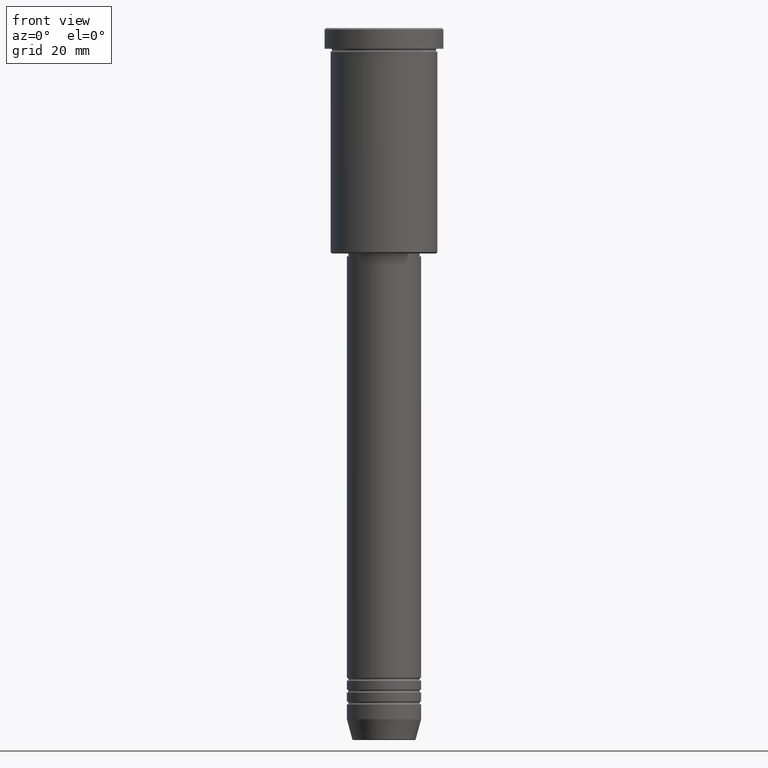
[diagram: clean part render]
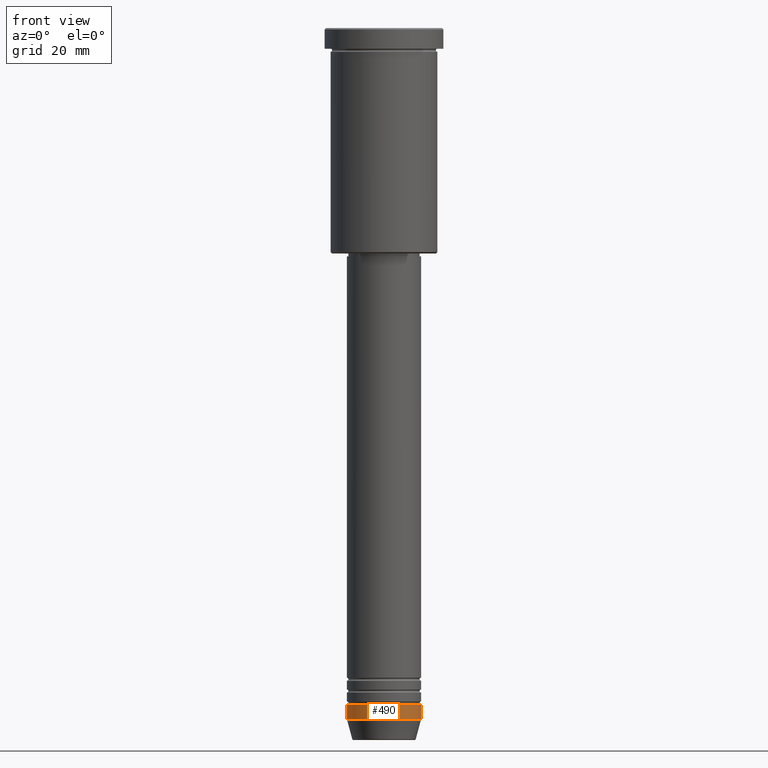
[diagram: same view with one face highlighted and labeled with its STEP entity id]
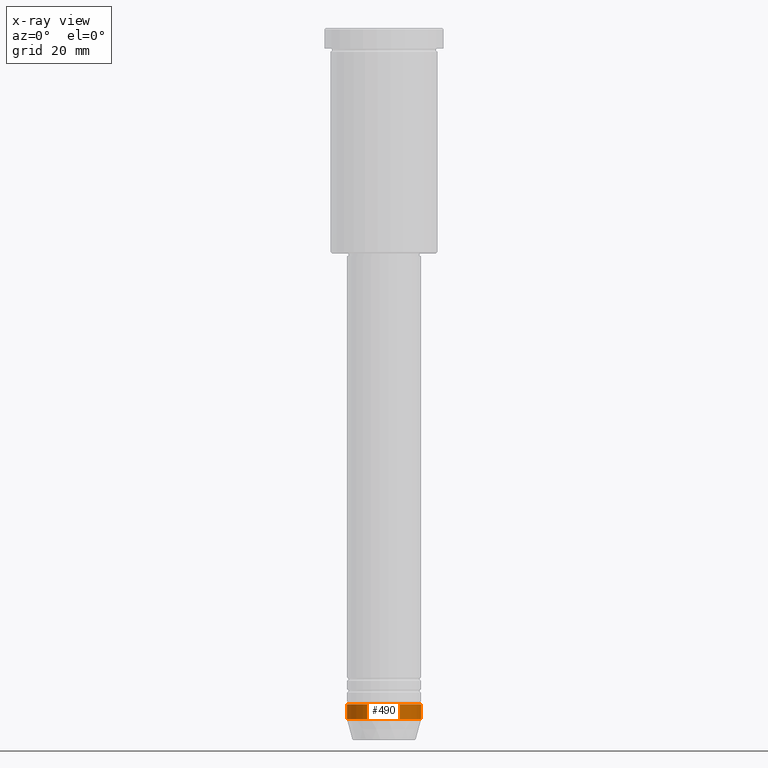
[diagram: x-ray of the same camera — body ghosted, the highlighted face saturated]
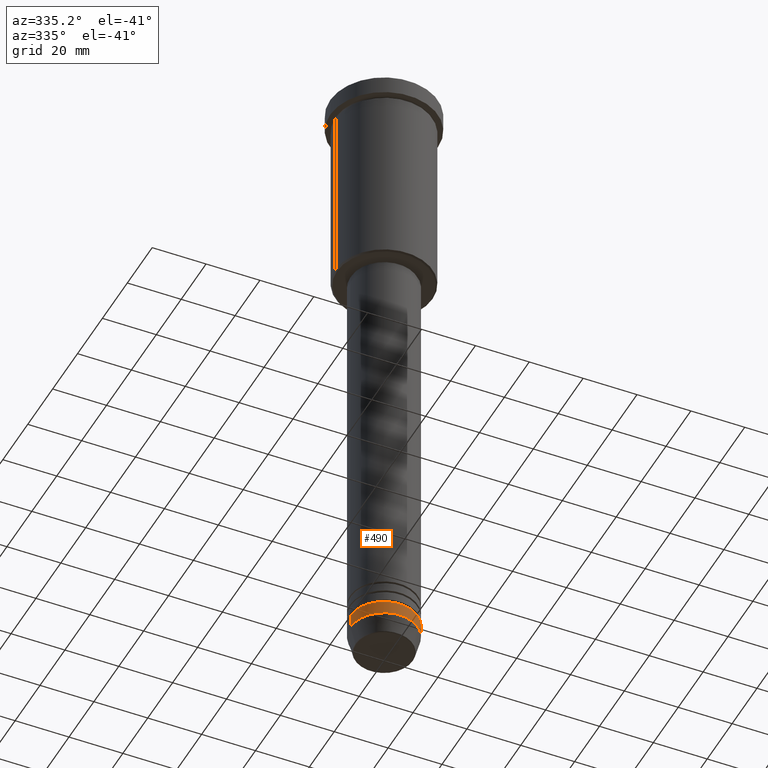
[diagram: same view with one face highlighted and labeled with its STEP entity id]
A machine part, front view. The second image highlights one B-rep face of the part: STEP entity #490.
The next image is the same camera in x-ray: the body ghosted, the highlighted face saturated — about 0% of this face is hidden behind the body in this view.
A second angle (auxiliary view) of the same face is appended — the face is thin or edge-on in the first view.
In plain terms, the highlighted cylindrical surface (partial cylindrical patch) has radius 12.5 mm, axis along (-0, -0, 1).
Its self-contained STEP definition (entity closure, byte-faithful):
#26 = ORIENTED_EDGE ( 'NONE', *, *, #912, .F. ) ;
#80 = CARTESIAN_POINT ( 'NONE',  ( -12.50000000000000000, 1.530808498934191521E-15, -228.0000000000000000 ) ) ;
#88 = CARTESIAN_POINT ( 'NONE',  ( 12.50000000000000000, 0.000000000000000000, -228.0000000000000000 ) ) ;
#97 = VERTEX_POINT ( 'NONE', #88 ) ;
#128 = CARTESIAN_POINT ( 'NONE',  ( -12.50000000000000000, 1.530808498934191521E-15, 0.000000000000000000 ) ) ;
#209 = LINE ( 'NONE', #128, #297 ) ;
#241 = CARTESIAN_POINT ( 'NONE',  ( 12.50000000000000000, 0.000000000000000000, 0.000000000000000000 ) ) ;
#247 = EDGE_LOOP ( 'NONE', ( #26, #569, #1029, #863 ) ) ;
#270 = AXIS2_PLACEMENT_3D ( 'NONE', #944, #672, #571 ) ;
#286 = VERTEX_POINT ( 'NONE', #80 ) ;
#296 = CYLINDRICAL_SURFACE ( 'NONE', #270, 12.50000000000000000 ) ;
#297 = VECTOR ( 'NONE', #1135, 1000.000000000000000 ) ;
#301 = DIRECTION ( 'NONE',  ( 1.000000000000000000, 0.000000000000000000, 0.000000000000000000 ) ) ;
#315 = AXIS2_PLACEMENT_3D ( 'NONE', #394, #768, #301 ) ;
#355 = VERTEX_POINT ( 'NONE', #824 ) ;
#394 = CARTESIAN_POINT ( 'NONE',  ( 0.000000000000000000, 0.000000000000000000, -233.0000000000000000 ) ) ;
#434 = EDGE_CURVE ( 'NONE', #286, #97, #583, .T. ) ;
#490 = ADVANCED_FACE ( 'NONE', ( #1115 ), #296, .T. ) ;
#536 = DIRECTION ( 'NONE',  ( 1.000000000000000000, 0.000000000000000000, 0.000000000000000000 ) ) ;
#569 = ORIENTED_EDGE ( 'NONE', *, *, #1144, .T. ) ;
#571 = DIRECTION ( 'NONE',  ( 1.000000000000000000, 0.000000000000000000, 0.000000000000000000 ) ) ;
#583 = CIRCLE ( 'NONE', #1137, 12.50000000000000000 ) ;
#586 = VECTOR ( 'NONE', #707, 1000.000000000000000 ) ;
#672 = DIRECTION ( 'NONE',  ( -0.000000000000000000, -0.000000000000000000, 1.000000000000000000 ) ) ;
#707 = DIRECTION ( 'NONE',  ( -0.000000000000000000, -0.000000000000000000, 1.000000000000000000 ) ) ;
#758 = VERTEX_POINT ( 'NONE', #969 ) ;
#768 = DIRECTION ( 'NONE',  ( -0.000000000000000000, -0.000000000000000000, 1.000000000000000000 ) ) ;
#824 = CARTESIAN_POINT ( 'NONE',  ( 12.50000000000000000, 0.000000000000000000, -233.0000000000000000 ) ) ;
#863 = ORIENTED_EDGE ( 'NONE', *, *, #434, .F. ) ;
#873 = EDGE_CURVE ( 'NONE', #355, #97, #1156, .T. ) ;
#912 = EDGE_CURVE ( 'NONE', #758, #286, #209, .T. ) ;
#944 = CARTESIAN_POINT ( 'NONE',  ( 0.000000000000000000, 0.000000000000000000, 0.000000000000000000 ) ) ;
#969 = CARTESIAN_POINT ( 'NONE',  ( -12.50000000000000000, 1.530808498934191521E-15, -233.0000000000000000 ) ) ;
#989 = CARTESIAN_POINT ( 'NONE',  ( 0.000000000000000000, 0.000000000000000000, -228.0000000000000000 ) ) ;
#1000 = DIRECTION ( 'NONE',  ( -0.000000000000000000, -0.000000000000000000, 1.000000000000000000 ) ) ;
#1029 = ORIENTED_EDGE ( 'NONE', *, *, #873, .T. ) ;
#1115 = FACE_OUTER_BOUND ( 'NONE', #247, .T. ) ;
#1135 = DIRECTION ( 'NONE',  ( -0.000000000000000000, -0.000000000000000000, 1.000000000000000000 ) ) ;
#1137 = AXIS2_PLACEMENT_3D ( 'NONE', #989, #1000, #536 ) ;
#1144 = EDGE_CURVE ( 'NONE', #758, #355, #1174, .T. ) ;
#1156 = LINE ( 'NONE', #241, #586 ) ;
#1174 = CIRCLE ( 'NONE', #315, 12.50000000000000000 ) ;